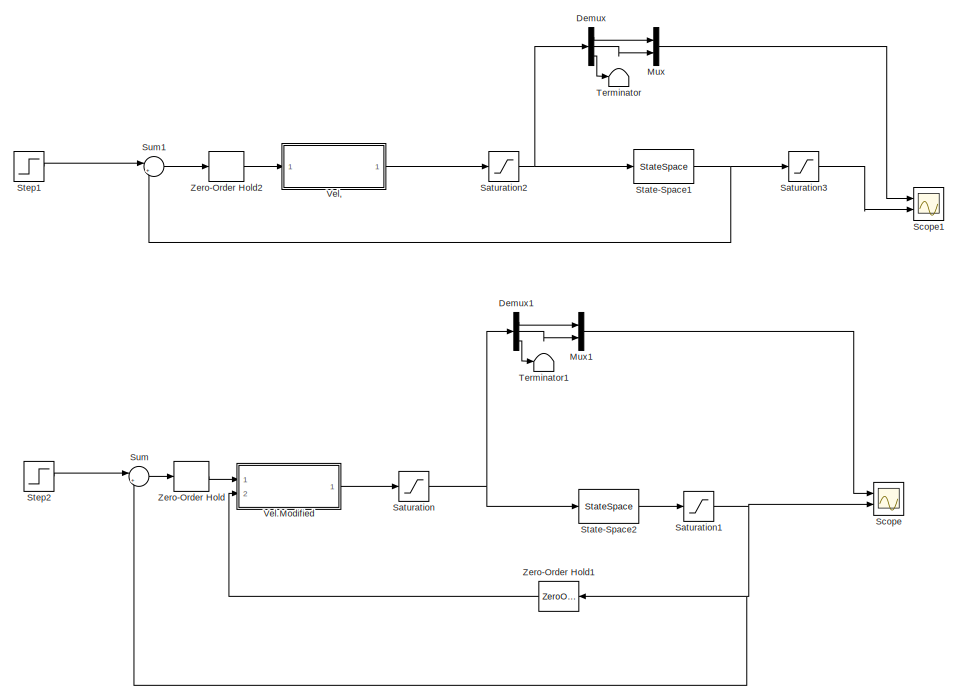
[diagram: root canvas - part 1/2, full width, top band]
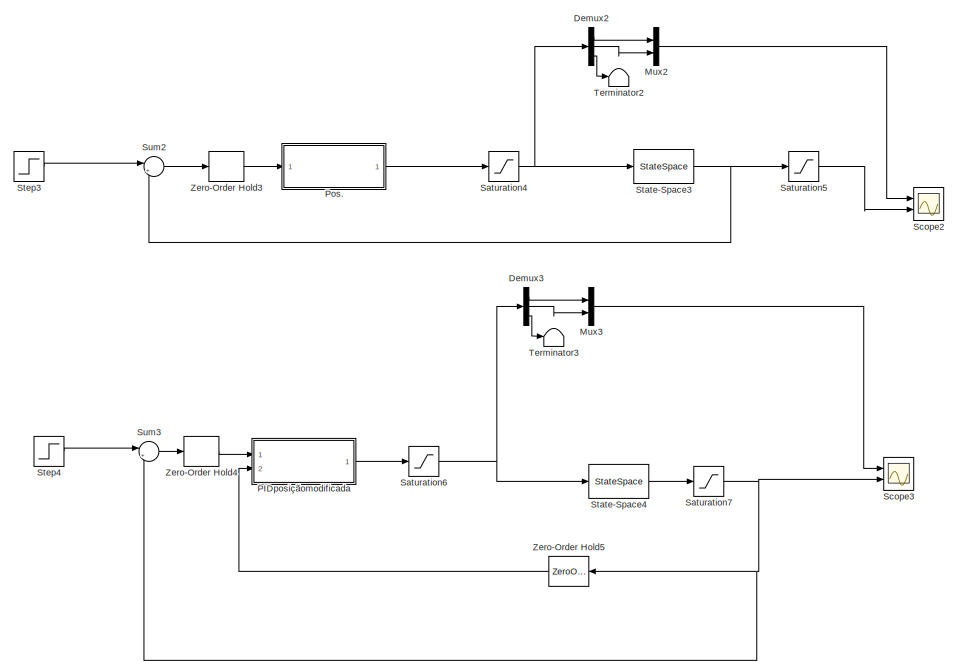
[diagram: root canvas - part 2/2, full width, bottom band]
MODEL slx_045667c675f7
KIND model
CONFIG AbsTol = auto
CONFIG EnableMultiTasking = off
CONFIG FixedStep = auto
CONFIG MaxStep = auto
CONFIG MinStep = auto
CONFIG RelTol = 1e-3
CONFIG SampleTimeConstraint = Unconstrained
CONFIG Solver = VariableStepAuto
CONFIG SolverName = VariableStepAuto
CONFIG StartTime = 0.0
CONFIG StopTime = 50.0
BLOCK [Demux] Demux
  DisplayOption = bar
  Outputs = 3
  Ports = [1, 3]
BLOCK [Demux] Demux1
  DisplayOption = bar
  Outputs = 3
  Ports = [1, 3]
BLOCK [Demux] Demux2
  DisplayOption = bar
  Outputs = 3
  Ports = [1, 3]
BLOCK [Demux] Demux3
  DisplayOption = bar
  Outputs = 3
  Ports = [1, 3]
BLOCK [Mux] Mux
  DisplayOption = bar
  Inputs = 2
  Ports = [2, 1]
BLOCK [Mux] Mux1
  DisplayOption = bar
  Inputs = 2
  Ports = [2, 1]
BLOCK [Mux] Mux2
  DisplayOption = bar
  Inputs = 2
  Ports = [2, 1]
BLOCK [Mux] Mux3
  DisplayOption = bar
  Inputs = 2
  Ports = [2, 1]
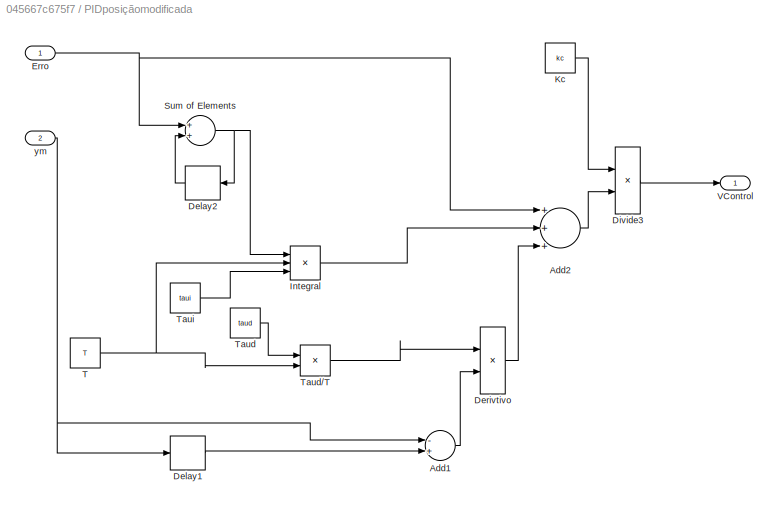
BLOCK [SubSystem] PIDposiçãomodificada
  Ports = [2, 1]
  RequestExecContextInheritance = off
  Variant = off
BLOCK [Sum] PIDposiçãomodificada/Add1
  InputSameDT = off
  Inputs = -+
  OutDataTypeStr = Inherit: Inherit via internal rule
  Ports = [2, 1]
  SaturateOnIntegerOverflow = off
BLOCK [Sum] PIDposiçãomodificada/Add2
  InputSameDT = off
  Inputs = +++
  OutDataTypeStr = Inherit: Inherit via internal rule
  Ports = [3, 1]
  SaturateOnIntegerOverflow = off
BLOCK [Delay] PIDposiçãomodificada/Delay1
  DelayLength = 1
  InputPortMap = u0
  Ports = [1, 1]
  SampleTime = T
BLOCK [Delay] PIDposiçãomodificada/Delay2
  DelayLength = 1
  InputPortMap = u0
  Ports = [1, 1]
  SampleTime = T
BLOCK [Product] PIDposiçãomodificada/Derivtivo
  InputSameDT = off
  Inputs = **
  OutDataTypeStr = Inherit: Inherit via internal rule
  Ports = [2, 1]
  RndMeth = Floor
  SaturateOnIntegerOverflow = off
BLOCK [Product] PIDposiçãomodificada/Divide3
  InputSameDT = off
  Inputs = **
  OutDataTypeStr = Inherit: Inherit via internal rule
  Ports = [2, 1]
  RndMeth = Floor
  SaturateOnIntegerOverflow = off
BLOCK [Inport] PIDposiçãomodificada/Erro
  IconDisplay = Port number
BLOCK [Product] PIDposiçãomodificada/Integral
  InputSameDT = off
  Inputs = **/
  OutDataTypeStr = Inherit: Inherit via internal rule
  Ports = [3, 1]
  RndMeth = Floor
  SaturateOnIntegerOverflow = off
BLOCK [Constant] PIDposiçãomodificada/Kc
  Value = kc
BLOCK [Sum] PIDposiçãomodificada/Sum of Elements
  InputSameDT = off
  OutDataTypeStr = Inherit: Inherit via internal rule
  Ports = [2, 1]
  SaturateOnIntegerOverflow = off
BLOCK [Constant] PIDposiçãomodificada/T
  Value = T
BLOCK [Constant] PIDposiçãomodificada/Taud
  Value = taud
BLOCK [Product] PIDposiçãomodificada/Taud//T
  InputSameDT = off
  Inputs = */
  OutDataTypeStr = Inherit: Inherit via internal rule
  Ports = [2, 1]
  RndMeth = Floor
  SaturateOnIntegerOverflow = off
BLOCK [Constant] PIDposiçãomodificada/Taui
  Value = taui
BLOCK [Outport] PIDposiçãomodificada/VControl
  IconDisplay = Port number
BLOCK [Inport] PIDposiçãomodificada/ym
  IconDisplay = Port number
  Port = 2
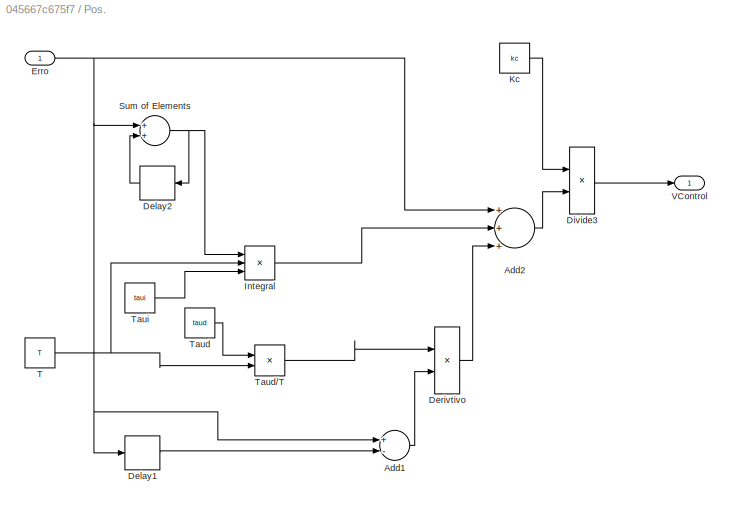
BLOCK [SubSystem] Pos.
  Ports = [1, 1]
  RequestExecContextInheritance = off
  Variant = off
BLOCK [Sum] Pos./Add1
  InputSameDT = off
  Inputs = +-
  OutDataTypeStr = Inherit: Inherit via internal rule
  Ports = [2, 1]
  SaturateOnIntegerOverflow = off
BLOCK [Sum] Pos./Add2
  InputSameDT = off
  Inputs = +++
  OutDataTypeStr = Inherit: Inherit via internal rule
  Ports = [3, 1]
  SaturateOnIntegerOverflow = off
BLOCK [Delay] Pos./Delay1
  DelayLength = 1
  InputPortMap = u0
  Ports = [1, 1]
  SampleTime = T
BLOCK [Delay] Pos./Delay2
  DelayLength = 1
  InputPortMap = u0
  Ports = [1, 1]
  SampleTime = T
BLOCK [Product] Pos./Derivtivo
  InputSameDT = off
  Inputs = **
  OutDataTypeStr = Inherit: Inherit via internal rule
  Ports = [2, 1]
  RndMeth = Floor
  SaturateOnIntegerOverflow = off
BLOCK [Product] Pos./Divide3
  InputSameDT = off
  Inputs = **
  OutDataTypeStr = Inherit: Inherit via internal rule
  Ports = [2, 1]
  RndMeth = Floor
  SaturateOnIntegerOverflow = off
BLOCK [Inport] Pos./Erro
  IconDisplay = Port number
BLOCK [Product] Pos./Integral
  InputSameDT = off
  Inputs = **/
  OutDataTypeStr = Inherit: Inherit via internal rule
  Ports = [3, 1]
  RndMeth = Floor
  SaturateOnIntegerOverflow = off
BLOCK [Constant] Pos./Kc
  Value = kc
BLOCK [Sum] Pos./Sum of Elements
  InputSameDT = off
  OutDataTypeStr = Inherit: Inherit via internal rule
  Ports = [2, 1]
  SaturateOnIntegerOverflow = off
BLOCK [Constant] Pos./T
  Value = T
BLOCK [Constant] Pos./Taud
  Value = taud
BLOCK [Product] Pos./Taud//T
  InputSameDT = off
  Inputs = */
  OutDataTypeStr = Inherit: Inherit via internal rule
  Ports = [2, 1]
  RndMeth = Floor
  SaturateOnIntegerOverflow = off
BLOCK [Constant] Pos./Taui
  Value = taui
BLOCK [Outport] Pos./VControl
  IconDisplay = Port number
BLOCK [Saturate] Saturation
  InputPortMap = u0
  LowerLimit = 0
  Ports = [1, 1]
  UpperLimit = 9
BLOCK [Saturate] Saturation1
  InputPortMap = u0
  LowerLimit = 0
  Ports = [1, 1]
  UpperLimit = 9
BLOCK [Saturate] Saturation2
  InputPortMap = u0
  LowerLimit = 0
  Ports = [1, 1]
  UpperLimit = 9
BLOCK [Saturate] Saturation3
  InputPortMap = u0
  LowerLimit = 0
  Ports = [1, 1]
  UpperLimit = 9
BLOCK [Saturate] Saturation4
  InputPortMap = u0
  LowerLimit = 0
  Ports = [1, 1]
  UpperLimit = 9
BLOCK [Saturate] Saturation5
  InputPortMap = u0
  LowerLimit = 0
  Ports = [1, 1]
  UpperLimit = 9
BLOCK [Saturate] Saturation6
  InputPortMap = u0
  LowerLimit = 0
  Ports = [1, 1]
  UpperLimit = 9
BLOCK [Saturate] Saturation7
  InputPortMap = u0
  LowerLimit = 0
  Ports = [1, 1]
  UpperLimit = 9
BLOCK [Scope] Scope
  NumInputPorts = 2
  Ports = [2]
  ScopeSpecificationString = Simulink.scopes.TimeScopeBlockCfg('CurrentConfiguration', extmgr.ConfigurationSet(extmgr.Configuration('Core','General UI',true),extmgr.Configuration('Core','Source UI',true),extmgr.Configuration('Sources','WiredSimulink',true),extmgr.Configuration('Visuals','Time Domain',true,'SerializedDisplays',{struct('MinYLimReal','-0.72704','MaxYLimReal','10.69368','YLabelReal','','MinYLimMag','0.00000','Max...<+1434ch>
BLOCK [Scope] Scope1
  NumInputPorts = 2
  Ports = [2]
  ScopeSpecificationString = Simulink.scopes.TimeScopeBlockCfg('CurrentConfiguration', extmgr.ConfigurationSet(extmgr.Configuration('Core','General UI',true),extmgr.Configuration('Core','Source UI',true),extmgr.Configuration('Sources','WiredSimulink',true,'DataLoggingVariableName','ScopeData1'),extmgr.Configuration('Visuals','Time Domain',true,'SerializedDisplays',{struct('MinYLimReal','-0.72704','MaxYLimReal','10.69368','YLa...<+1456ch>
BLOCK [Scope] Scope2
  NumInputPorts = 2
  Ports = [2]
  ScopeSpecificationString = Simulink.scopes.TimeScopeBlockCfg('CurrentConfiguration', extmgr.ConfigurationSet(extmgr.Configuration('Core','General UI',true),extmgr.Configuration('Core','Source UI',true),extmgr.Configuration('Sources','WiredSimulink',true,'DataLoggingVariableName','ScopeData2'),extmgr.Configuration('Visuals','Time Domain',true,'SerializedDisplays',{struct('MinYLimReal','-0.72704','MaxYLimReal','10.69368','YLa...<+1456ch>
BLOCK [Scope] Scope3
  NumInputPorts = 2
  Ports = [2]
  ScopeSpecificationString = Simulink.scopes.TimeScopeBlockCfg('CurrentConfiguration', extmgr.ConfigurationSet(extmgr.Configuration('Core','General UI',true),extmgr.Configuration('Core','Source UI',true),extmgr.Configuration('Sources','WiredSimulink',true,'DataLoggingVariableName','ScopeData3'),extmgr.Configuration('Visuals','Time Domain',true,'SerializedDisplays',{struct('MinYLimReal','-0.72704','MaxYLimReal','10.69368','YLa...<+1475ch>
BLOCK [StateSpace] State-Space1
  A = A
  B = B
  C = C
  D = D
  Ports = [1, 1]
  X0 = 0
BLOCK [StateSpace] State-Space2
  A = A
  B = B
  C = C
  D = D
  Ports = [1, 1]
  X0 = 0
BLOCK [StateSpace] State-Space3
  A = A
  B = B
  C = C
  D = D
  Ports = [1, 1]
  X0 = 0
BLOCK [StateSpace] State-Space4
  A = A
  B = B
  C = C
  D = D
  Ports = [1, 1]
  X0 = 0
BLOCK [Step] Step1
  After = [5,7,0]
  SampleTime = 0
BLOCK [Step] Step2
  After = [5,7,0]
  SampleTime = 0
BLOCK [Step] Step3
  After = [5,7,0]
  SampleTime = 0
BLOCK [Step] Step4
  After = [5,7,0]
  SampleTime = 0
BLOCK [Sum] Sum
  IconShape = round
  InputSameDT = off
  Inputs = |+-
  OutDataTypeStr = Inherit: Inherit via internal rule
  Ports = [2, 1]
  SaturateOnIntegerOverflow = off
BLOCK [Sum] Sum1
  IconShape = round
  InputSameDT = off
  Inputs = |+-
  OutDataTypeStr = Inherit: Inherit via internal rule
  Ports = [2, 1]
  SaturateOnIntegerOverflow = off
BLOCK [Sum] Sum2
  IconShape = round
  InputSameDT = off
  Inputs = |+-
  OutDataTypeStr = Inherit: Inherit via internal rule
  Ports = [2, 1]
  SaturateOnIntegerOverflow = off
BLOCK [Sum] Sum3
  IconShape = round
  InputSameDT = off
  Inputs = |+-
  OutDataTypeStr = Inherit: Inherit via internal rule
  Ports = [2, 1]
  SaturateOnIntegerOverflow = off
BLOCK [Terminator] Terminator
BLOCK [Terminator] Terminator1
BLOCK [Terminator] Terminator2
BLOCK [Terminator] Terminator3
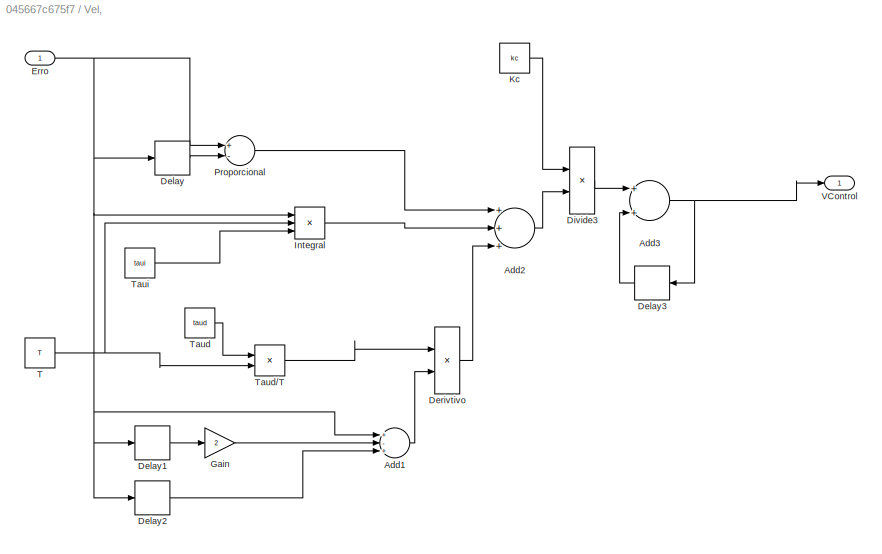
BLOCK [SubSystem] Vel,
  Ports = [1, 1]
  RequestExecContextInheritance = off
  Variant = off
BLOCK [Sum] Vel,/Add1
  InputSameDT = off
  Inputs = +-+
  OutDataTypeStr = Inherit: Inherit via internal rule
  Ports = [3, 1]
  SaturateOnIntegerOverflow = off
BLOCK [Sum] Vel,/Add2
  InputSameDT = off
  Inputs = +++
  OutDataTypeStr = Inherit: Inherit via internal rule
  Ports = [3, 1]
  SaturateOnIntegerOverflow = off
BLOCK [Sum] Vel,/Add3
  InputSameDT = off
  OutDataTypeStr = Inherit: Inherit via internal rule
  Ports = [2, 1]
  SaturateOnIntegerOverflow = off
BLOCK [Delay] Vel,/Delay
  DelayLength = 1
  InputPortMap = u0
  Ports = [1, 1]
  SampleTime = T
BLOCK [Delay] Vel,/Delay1
  DelayLength = 1
  InputPortMap = u0
  Ports = [1, 1]
  SampleTime = T
BLOCK [Delay] Vel,/Delay2
  InputPortMap = u0
  Ports = [1, 1]
  SampleTime = T
BLOCK [Delay] Vel,/Delay3
  DelayLength = 1
  InputPortMap = u0
  Ports = [1, 1]
  SampleTime = T
BLOCK [Product] Vel,/Derivtivo
  InputSameDT = off
  Inputs = **
  OutDataTypeStr = Inherit: Inherit via internal rule
  Ports = [2, 1]
  RndMeth = Floor
  SaturateOnIntegerOverflow = off
BLOCK [Product] Vel,/Divide3
  InputSameDT = off
  Inputs = **
  OutDataTypeStr = Inherit: Inherit via internal rule
  Ports = [2, 1]
  RndMeth = Floor
  SaturateOnIntegerOverflow = off
BLOCK [Inport] Vel,/Erro
  IconDisplay = Port number
BLOCK [Gain] Vel,/Gain
  Gain = 2
  OutDataTypeStr = Inherit: Inherit via internal rule
  ParamDataTypeStr = Inherit: Inherit via internal rule
  SaturateOnIntegerOverflow = off
BLOCK [Product] Vel,/Integral
  InputSameDT = off
  Inputs = **/
  OutDataTypeStr = Inherit: Inherit via internal rule
  Ports = [3, 1]
  RndMeth = Floor
  SaturateOnIntegerOverflow = off
BLOCK [Constant] Vel,/Kc
  Value = kc
BLOCK [Sum] Vel,/Proporcional
  InputSameDT = off
  Inputs = +-
  OutDataTypeStr = Inherit: Inherit via internal rule
  Ports = [2, 1]
  SaturateOnIntegerOverflow = off
BLOCK [Constant] Vel,/T
  Value = T
BLOCK [Constant] Vel,/Taud
  Value = taud
BLOCK [Product] Vel,/Taud//T
  InputSameDT = off
  Inputs = */
  OutDataTypeStr = Inherit: Inherit via internal rule
  Ports = [2, 1]
  RndMeth = Floor
  SaturateOnIntegerOverflow = off
BLOCK [Constant] Vel,/Taui
  Value = taui
BLOCK [Outport] Vel,/VControl
  IconDisplay = Port number
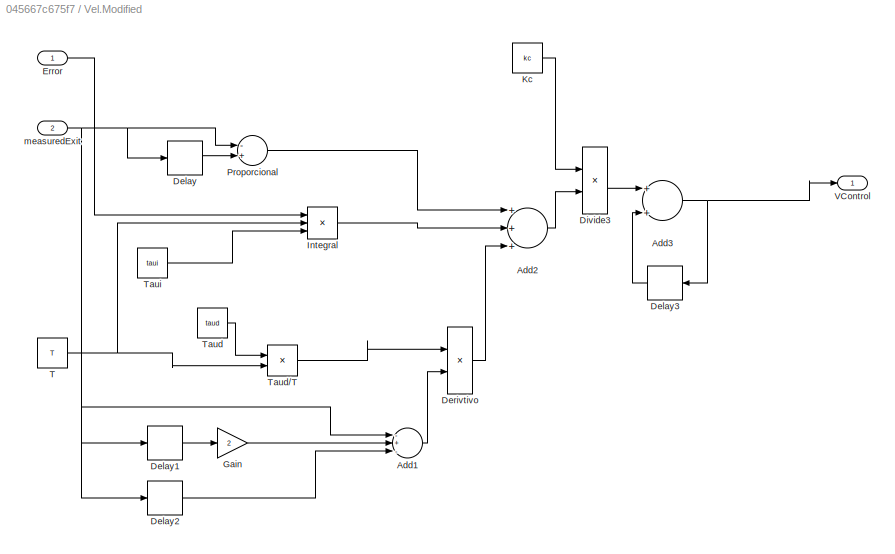
BLOCK [SubSystem] Vel.Modified 
  Ports = [2, 1]
  RequestExecContextInheritance = off
  Variant = off
BLOCK [Sum] Vel.Modified /Add1
  InputSameDT = off
  Inputs = -+-
  OutDataTypeStr = Inherit: Inherit via internal rule
  Ports = [3, 1]
  SaturateOnIntegerOverflow = off
BLOCK [Sum] Vel.Modified /Add2
  InputSameDT = off
  Inputs = +++
  OutDataTypeStr = Inherit: Inherit via internal rule
  Ports = [3, 1]
  SaturateOnIntegerOverflow = off
BLOCK [Sum] Vel.Modified /Add3
  InputSameDT = off
  OutDataTypeStr = Inherit: Inherit via internal rule
  Ports = [2, 1]
  SaturateOnIntegerOverflow = off
BLOCK [Delay] Vel.Modified /Delay
  DelayLength = 1
  InputPortMap = u0
  Ports = [1, 1]
  SampleTime = T
BLOCK [Delay] Vel.Modified /Delay1
  DelayLength = 1
  InputPortMap = u0
  Ports = [1, 1]
  SampleTime = T
BLOCK [Delay] Vel.Modified /Delay2
  InputPortMap = u0
  Ports = [1, 1]
  SampleTime = T
BLOCK [Delay] Vel.Modified /Delay3
  DelayLength = 1
  InputPortMap = u0
  Ports = [1, 1]
  SampleTime = T
BLOCK [Product] Vel.Modified /Derivtivo
  InputSameDT = off
  Inputs = **
  OutDataTypeStr = Inherit: Inherit via internal rule
  Ports = [2, 1]
  RndMeth = Floor
  SaturateOnIntegerOverflow = off
BLOCK [Product] Vel.Modified /Divide3
  InputSameDT = off
  Inputs = **
  OutDataTypeStr = Inherit: Inherit via internal rule
  Ports = [2, 1]
  RndMeth = Floor
  SaturateOnIntegerOverflow = off
BLOCK [Inport] Vel.Modified /Error
  IconDisplay = Port number
BLOCK [Gain] Vel.Modified /Gain
  Gain = 2
  OutDataTypeStr = Inherit: Inherit via internal rule
  ParamDataTypeStr = Inherit: Inherit via internal rule
  SaturateOnIntegerOverflow = off
BLOCK [Product] Vel.Modified /Integral
  InputSameDT = off
  Inputs = **/
  OutDataTypeStr = Inherit: Inherit via internal rule
  Ports = [3, 1]
  RndMeth = Floor
  SaturateOnIntegerOverflow = off
BLOCK [Constant] Vel.Modified /Kc
  Value = kc
BLOCK [Sum] Vel.Modified /Proporcional
  InputSameDT = off
  Inputs = -+
  OutDataTypeStr = Inherit: Inherit via internal rule
  Ports = [2, 1]
  SaturateOnIntegerOverflow = off
BLOCK [Constant] Vel.Modified /T
  Value = T
BLOCK [Constant] Vel.Modified /Taud
  Value = taud
BLOCK [Product] Vel.Modified /Taud//T
  InputSameDT = off
  Inputs = */
  OutDataTypeStr = Inherit: Inherit via internal rule
  Ports = [2, 1]
  RndMeth = Floor
  SaturateOnIntegerOverflow = off
BLOCK [Constant] Vel.Modified /Taui
  Value = taui
BLOCK [Outport] Vel.Modified /VControl
  IconDisplay = Port number
BLOCK [Inport] Vel.Modified /measuredExit
  IconDisplay = Port number
  Port = 2
BLOCK [ZeroOrderHold] Zero-Order Hold
  SampleTime = -1
BLOCK [ZeroOrderHold] Zero-Order Hold1
  SampleTime = -1
BLOCK [ZeroOrderHold] Zero-Order Hold2
  SampleTime = -1
BLOCK [ZeroOrderHold] Zero-Order Hold3
  SampleTime = -1
BLOCK [ZeroOrderHold] Zero-Order Hold4
  SampleTime = -1
BLOCK [ZeroOrderHold] Zero-Order Hold5
  SampleTime = -1
LINE Demux1:1 -> Mux1:1
LINE Demux1:2 -> Mux1:2
LINE Demux1:3 -> Terminator1:1
LINE Demux2:1 -> Mux2:1
LINE Demux2:2 -> Mux2:2
LINE Demux2:3 -> Terminator2:1
LINE Demux3:1 -> Mux3:1
LINE Demux3:2 -> Mux3:2
LINE Demux3:3 -> Terminator3:1
LINE Demux:1 -> Mux:1
LINE Demux:2 -> Mux:2
LINE Demux:3 -> Terminator:1
LINE Mux1:1 -> Scope:1
LINE Mux2:1 -> Scope2:1
LINE Mux3:1 -> Scope3:1
LINE Mux:1 -> Scope1:1
LINE PIDposiçãomodificada/Add1:1 -> PIDposiçãomodificada/Derivtivo:2
LINE PIDposiçãomodificada/Add2:1 -> PIDposiçãomodificada/Divide3:2
LINE PIDposiçãomodificada/Delay1:1 -> PIDposiçãomodificada/Add1:2
LINE PIDposiçãomodificada/Delay2:1 -> PIDposiçãomodificada/Sum of Elements:2
LINE PIDposiçãomodificada/Derivtivo:1 -> PIDposiçãomodificada/Add2:3
LINE PIDposiçãomodificada/Divide3:1 -> PIDposiçãomodificada/VControl:1
NET PIDposiçãomodificada/Erro:1 -> PIDposiçãomodificada/Add2:1, PIDposiçãomodificada/Sum of Elements:1
LINE PIDposiçãomodificada/Integral:1 -> PIDposiçãomodificada/Add2:2
LINE PIDposiçãomodificada/Kc:1 -> PIDposiçãomodificada/Divide3:1
NET PIDposiçãomodificada/Sum of Elements:1 -> PIDposiçãomodificada/Delay2:1, PIDposiçãomodificada/Integral:1
NET PIDposiçãomodificada/T:1 -> PIDposiçãomodificada/Integral:2, PIDposiçãomodificada/Taud//T:2
LINE PIDposiçãomodificada/Taud//T:1 -> PIDposiçãomodificada/Derivtivo:1
LINE PIDposiçãomodificada/Taud:1 -> PIDposiçãomodificada/Taud//T:1
LINE PIDposiçãomodificada/Taui:1 -> PIDposiçãomodificada/Integral:3
NET PIDposiçãomodificada/ym:1 -> PIDposiçãomodificada/Add1:1, PIDposiçãomodificada/Delay1:1
LINE PIDposiçãomodificada:1 -> Saturation6:1
LINE Pos./Add1:1 -> Pos./Derivtivo:2
LINE Pos./Add2:1 -> Pos./Divide3:2
LINE Pos./Delay1:1 -> Pos./Add1:2
LINE Pos./Delay2:1 -> Pos./Sum of Elements:2
LINE Pos./Derivtivo:1 -> Pos./Add2:3
LINE Pos./Divide3:1 -> Pos./VControl:1
NET Pos./Erro:1 -> Pos./Add1:1, Pos./Add2:1, Pos./Delay1:1, Pos./Sum of Elements:1
LINE Pos./Integral:1 -> Pos./Add2:2
LINE Pos./Kc:1 -> Pos./Divide3:1
NET Pos./Sum of Elements:1 -> Pos./Delay2:1, Pos./Integral:1
NET Pos./T:1 -> Pos./Integral:2, Pos./Taud//T:2
LINE Pos./Taud//T:1 -> Pos./Derivtivo:1
LINE Pos./Taud:1 -> Pos./Taud//T:1
LINE Pos./Taui:1 -> Pos./Integral:3
LINE Pos.:1 -> Saturation4:1
NET Saturation1:1 -> Scope:2, Sum:2, Zero-Order Hold1:1
NET Saturation2:1 -> Demux:1, State-Space1:1
LINE Saturation3:1 -> Scope1:2
NET Saturation4:1 -> Demux2:1, State-Space3:1
LINE Saturation5:1 -> Scope2:2
NET Saturation6:1 -> Demux3:1, State-Space4:1
NET Saturation7:1 -> Scope3:2, Sum3:2, Zero-Order Hold5:1
NET Saturation:1 -> Demux1:1, State-Space2:1
NET State-Space1:1 -> Saturation3:1, Sum1:2
LINE State-Space2:1 -> Saturation1:1
NET State-Space3:1 -> Saturation5:1, Sum2:2
LINE State-Space4:1 -> Saturation7:1
LINE Step1:1 -> Sum1:1
LINE Step2:1 -> Sum:1
LINE Step3:1 -> Sum2:1
LINE Step4:1 -> Sum3:1
LINE Sum1:1 -> Zero-Order Hold2:1
LINE Sum2:1 -> Zero-Order Hold3:1
LINE Sum3:1 -> Zero-Order Hold4:1
LINE Sum:1 -> Zero-Order Hold:1
LINE Vel,/Add1:1 -> Vel,/Derivtivo:2
LINE Vel,/Add2:1 -> Vel,/Divide3:2
NET Vel,/Add3:1 -> Vel,/Delay3:1, Vel,/VControl:1
LINE Vel,/Delay1:1 -> Vel,/Gain:1
LINE Vel,/Delay2:1 -> Vel,/Add1:3
LINE Vel,/Delay3:1 -> Vel,/Add3:2
LINE Vel,/Delay:1 -> Vel,/Proporcional:2
LINE Vel,/Derivtivo:1 -> Vel,/Add2:3
LINE Vel,/Divide3:1 -> Vel,/Add3:1
NET Vel,/Erro:1 -> Vel,/Add1:1, Vel,/Delay1:1, Vel,/Delay2:1, Vel,/Delay:1, Vel,/Integral:1, Vel,/Proporcional:1
LINE Vel,/Gain:1 -> Vel,/Add1:2
LINE Vel,/Integral:1 -> Vel,/Add2:2
LINE Vel,/Kc:1 -> Vel,/Divide3:1
LINE Vel,/Proporcional:1 -> Vel,/Add2:1
NET Vel,/T:1 -> Vel,/Integral:2, Vel,/Taud//T:2
LINE Vel,/Taud//T:1 -> Vel,/Derivtivo:1
LINE Vel,/Taud:1 -> Vel,/Taud//T:1
LINE Vel,/Taui:1 -> Vel,/Integral:3
LINE Vel,:1 -> Saturation2:1
LINE Vel.Modified /Add1:1 -> Vel.Modified /Derivtivo:2
LINE Vel.Modified /Add2:1 -> Vel.Modified /Divide3:2
NET Vel.Modified /Add3:1 -> Vel.Modified /Delay3:1, Vel.Modified /VControl:1
LINE Vel.Modified /Delay1:1 -> Vel.Modified /Gain:1
LINE Vel.Modified /Delay2:1 -> Vel.Modified /Add1:3
LINE Vel.Modified /Delay3:1 -> Vel.Modified /Add3:2
LINE Vel.Modified /Delay:1 -> Vel.Modified /Proporcional:2
LINE Vel.Modified /Derivtivo:1 -> Vel.Modified /Add2:3
LINE Vel.Modified /Divide3:1 -> Vel.Modified /Add3:1
LINE Vel.Modified /Error:1 -> Vel.Modified /Integral:1
LINE Vel.Modified /Gain:1 -> Vel.Modified /Add1:2
LINE Vel.Modified /Integral:1 -> Vel.Modified /Add2:2
LINE Vel.Modified /Kc:1 -> Vel.Modified /Divide3:1
LINE Vel.Modified /Proporcional:1 -> Vel.Modified /Add2:1
NET Vel.Modified /T:1 -> Vel.Modified /Integral:2, Vel.Modified /Taud//T:2
LINE Vel.Modified /Taud//T:1 -> Vel.Modified /Derivtivo:1
LINE Vel.Modified /Taud:1 -> Vel.Modified /Taud//T:1
LINE Vel.Modified /Taui:1 -> Vel.Modified /Integral:3
NET Vel.Modified /measuredExit:1 -> Vel.Modified /Add1:1, Vel.Modified /Delay1:1, Vel.Modified /Delay2:1, Vel.Modified /Delay:1, Vel.Modified /Proporcional:1
LINE Vel.Modified :1 -> Saturation:1
LINE Zero-Order Hold1:1 -> Vel.Modified :2
LINE Zero-Order Hold2:1 -> Vel,:1
LINE Zero-Order Hold3:1 -> Pos.:1
LINE Zero-Order Hold4:1 -> PIDposiçãomodificada:1
LINE Zero-Order Hold5:1 -> PIDposiçãomodificada:2
LINE Zero-Order Hold:1 -> Vel.Modified :1
note: NET lines group one-source signal fan-out (src -> all destinations, sorted); 1:1 wires keep LINE
